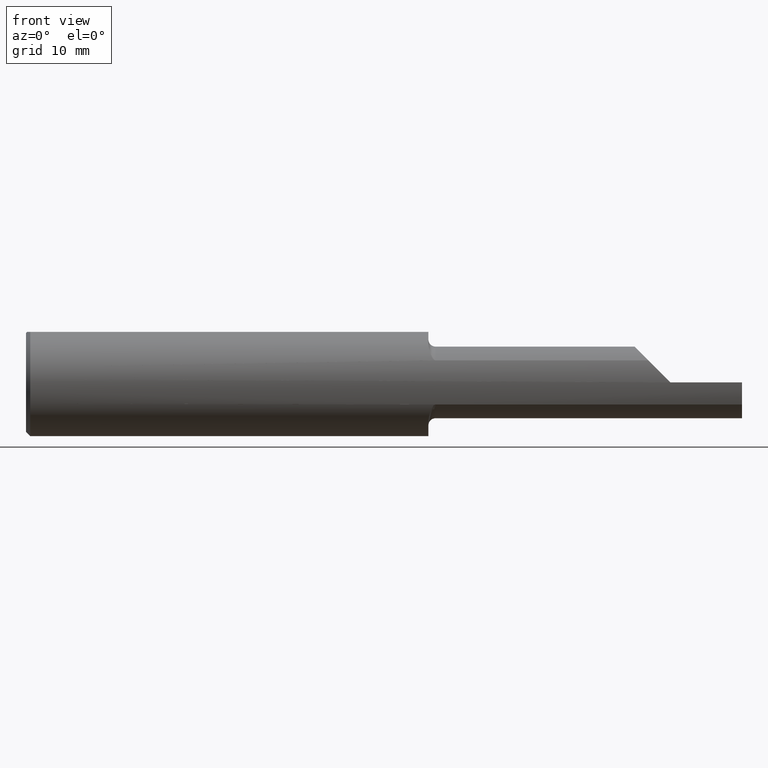
[diagram: clean part render]
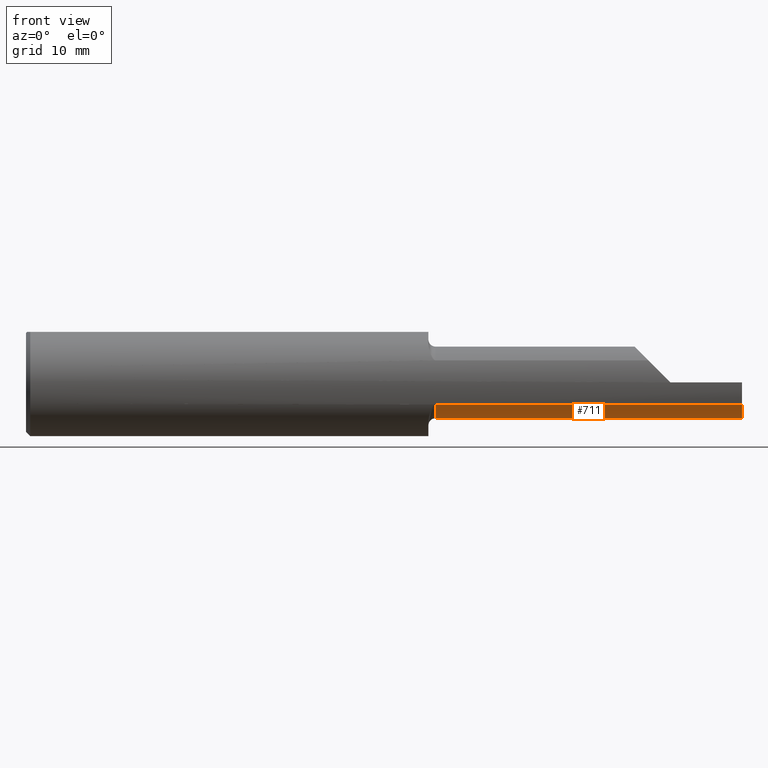
[diagram: same view with one face highlighted and labeled with its STEP entity id]
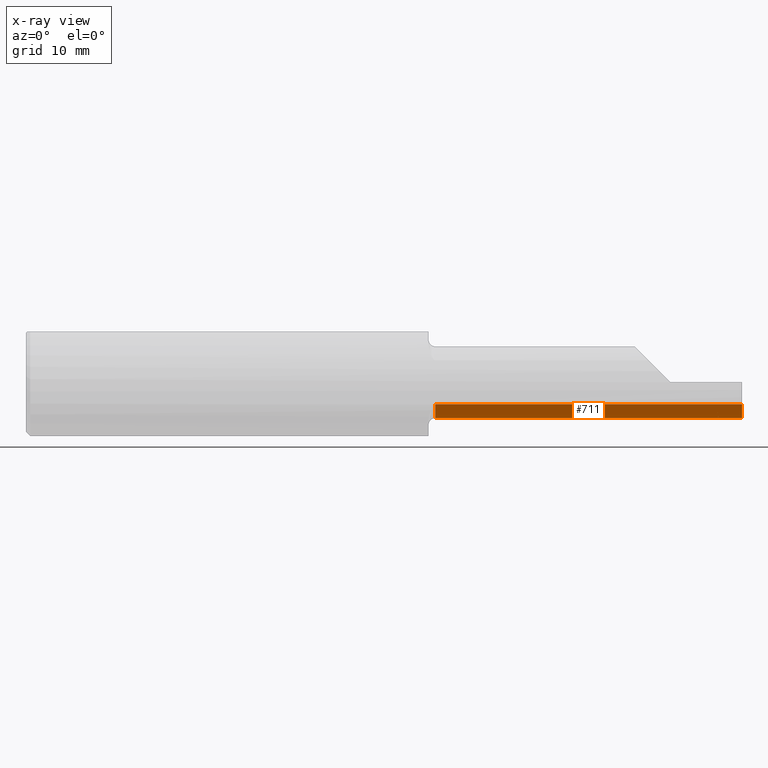
[diagram: x-ray of the same camera — body ghosted, the highlighted face saturated]
A machine part, front view. The second image highlights one B-rep face of the part: STEP entity #711.
The next image is the same camera in x-ray: the body ghosted, the highlighted face saturated — about 0% of this face is hidden behind the body in this view.
In plain terms, the highlighted cylindrical surface (edge-blend (fillet) strip) has radius 3.175 mm, axis along (-1, -0, -0).
Its self-contained STEP definition (entity closure, byte-faithful):
#53 = CARTESIAN_POINT ( 'NONE',  ( 1.429999999999999938, -0.1707639599170698019, -0.07706940050007766996 ) ) ;
#64 = CYLINDRICAL_SURFACE ( 'NONE', #586, 0.1250000000000000000 ) ;
#65 = ORIENTED_EDGE ( 'NONE', *, *, #93, .F. ) ;
#79 = AXIS2_PLACEMENT_3D ( 'NONE', #270, #173, #799 ) ;
#93 = EDGE_CURVE ( 'NONE', #509, #632, #166, .T. ) ;
#114 = CARTESIAN_POINT ( 'NONE',  ( 1.405000000000000249, -0.07234999999999996989, -0.1250000000000000000 ) ) ;
#149 = EDGE_CURVE ( 'NONE', #509, #384, #833, .T. ) ;
#160 = DIRECTION ( 'NONE',  ( 0.000000000000000000, 0.000000000000000000, 1.000000000000000000 ) ) ;
#166 = CIRCLE ( 'NONE', #832, 0.1250000000000000000 ) ;
#173 = DIRECTION ( 'NONE',  ( 1.000000000000000000, 0.000000000000000000, 0.000000000000000000 ) ) ;
#186 = EDGE_LOOP ( 'NONE', ( #979, #637, #65, #743, #965 ) ) ;
#189 = DIRECTION ( 'NONE',  ( -1.000000000000000000, -0.000000000000000000, -0.000000000000000000 ) ) ;
#235 = CARTESIAN_POINT ( 'NONE',  ( 2.500000000000000000, -0.07234999999999998377, 0.000000000000000000 ) ) ;
#240 = CARTESIAN_POINT ( 'NONE',  ( 1.902500000000000302, -0.1707639599170698019, -0.07706940050007766996 ) ) ;
#269 = EDGE_CURVE ( 'NONE', #384, #747, #818, .T. ) ;
#270 = CARTESIAN_POINT ( 'NONE',  ( 1.429999999999999938, -0.07234999999999998377, 0.000000000000000000 ) ) ;
#300 = EDGE_CURVE ( 'NONE', #697, #747, #566, .T. ) ;
#306 = VECTOR ( 'NONE', #396, 39.37007874015748143 ) ;
#315 = CARTESIAN_POINT ( 'NONE',  ( 2.500000000000000000, -0.1707639599170698019, -0.07706940050007768384 ) ) ;
#322 = DIRECTION ( 'NONE',  ( 1.000000000000000000, -0.000000000000000000, -0.000000000000000000 ) ) ;
#348 = LINE ( 'NONE', #737, #392 ) ;
#358 = CARTESIAN_POINT ( 'NONE',  ( 2.500000000000000000, -0.07234999999999999765, -0.1249999999999999861 ) ) ;
#367 = CARTESIAN_POINT ( 'NONE',  ( 1.405000000000000249, -0.07234999999999998377, 0.000000000000000000 ) ) ;
#384 = VERTEX_POINT ( 'NONE', #53 ) ;
#392 = VECTOR ( 'NONE', #956, 39.37007874015748143 ) ;
#396 = DIRECTION ( 'NONE',  ( -1.000000000000000000, -0.000000000000000000, -0.000000000000000000 ) ) ;
#459 = DIRECTION ( 'NONE',  ( -1.000000000000000000, -0.000000000000000000, -0.000000000000000000 ) ) ;
#473 = CARTESIAN_POINT ( 'NONE',  ( 1.429999999999999938, -0.07234999999999996989, -0.1250000000000000000 ) ) ;
#484 = DIRECTION ( 'NONE',  ( 0.000000000000000000, 0.000000000000000000, 1.000000000000000000 ) ) ;
#509 = VERTEX_POINT ( 'NONE', #315 ) ;
#520 = EDGE_CURVE ( 'NONE', #632, #697, #348, .T. ) ;
#530 = CARTESIAN_POINT ( 'NONE',  ( 2.418197582037931781, -0.07235000000000001152, -0.1250000000000000000 ) ) ;
#566 = LINE ( 'NONE', #114, #767 ) ;
#586 = AXIS2_PLACEMENT_3D ( 'NONE', #367, #459, #484 ) ;
#589 = FACE_OUTER_BOUND ( 'NONE', #186, .T. ) ;
#632 = VERTEX_POINT ( 'NONE', #358 ) ;
#637 = ORIENTED_EDGE ( 'NONE', *, *, #520, .F. ) ;
#697 = VERTEX_POINT ( 'NONE', #530 ) ;
#711 = ADVANCED_FACE ( 'NONE', ( #589 ), #64, .T. ) ;
#737 = CARTESIAN_POINT ( 'NONE',  ( 2.500000000000000000, -0.07234999999999999765, -0.1249999999999999861 ) ) ;
#743 = ORIENTED_EDGE ( 'NONE', *, *, #149, .T. ) ;
#747 = VERTEX_POINT ( 'NONE', #473 ) ;
#767 = VECTOR ( 'NONE', #189, 39.37007874015748143 ) ;
#799 = DIRECTION ( 'NONE',  ( 0.000000000000000000, 0.000000000000000000, -1.000000000000000000 ) ) ;
#818 = CIRCLE ( 'NONE', #79, 0.1250000000000000000 ) ;
#832 = AXIS2_PLACEMENT_3D ( 'NONE', #235, #322, #160 ) ;
#833 = LINE ( 'NONE', #240, #306 ) ;
#956 = DIRECTION ( 'NONE',  ( -1.000000000000000000, -0.000000000000000000, -0.000000000000000000 ) ) ;
#965 = ORIENTED_EDGE ( 'NONE', *, *, #269, .T. ) ;
#979 = ORIENTED_EDGE ( 'NONE', *, *, #300, .F. ) ;